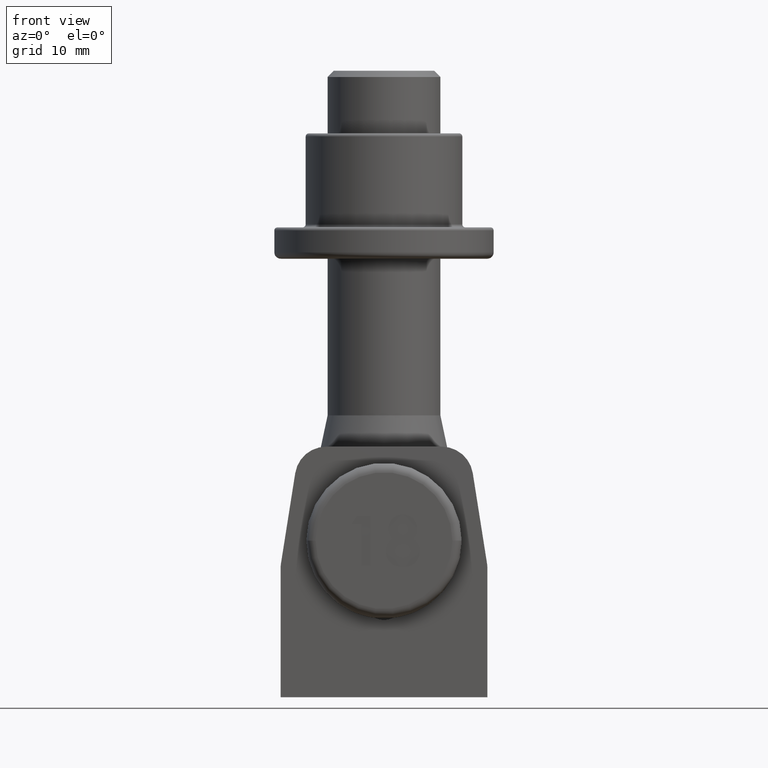
[diagram: clean part render]
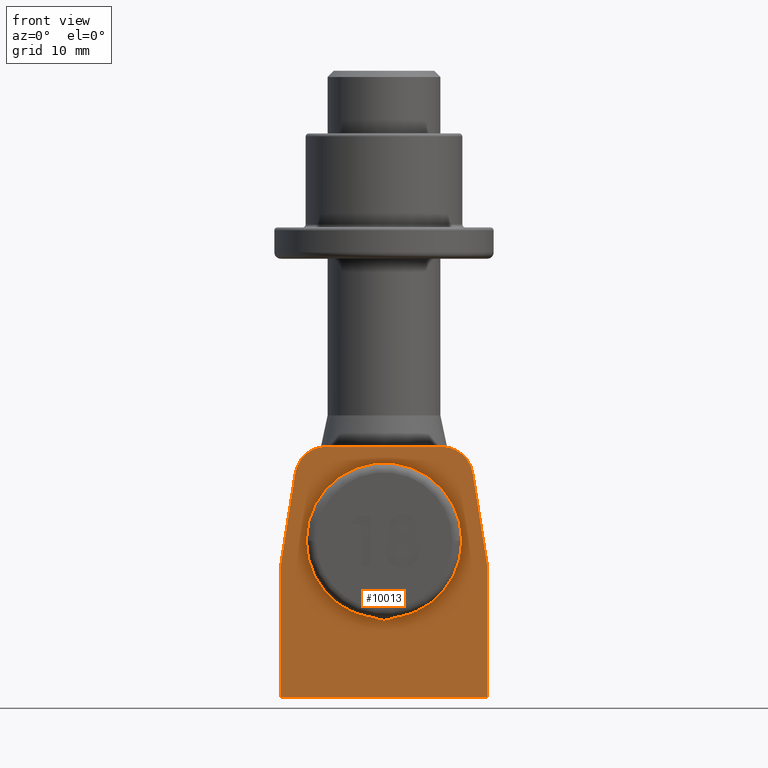
[diagram: same view with one face highlighted and labeled with its STEP entity id]
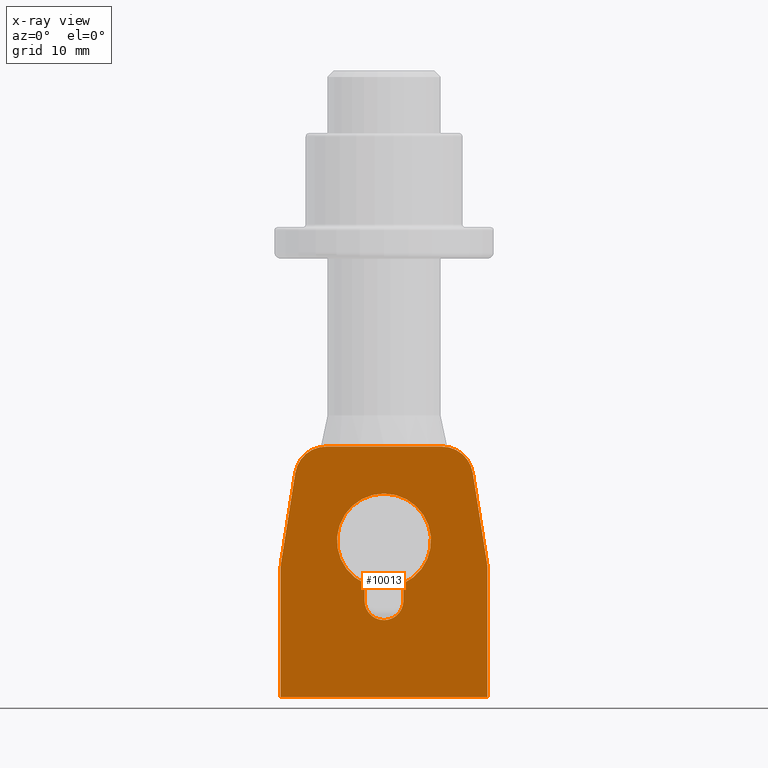
[diagram: x-ray of the same camera — body ghosted, the highlighted face saturated]
A machine part, front view. The second image highlights one B-rep face of the part: STEP entity #10013.
The next image is the same camera in x-ray: the body ghosted, the highlighted face saturated — about 0% of this face is hidden behind the body in this view.
In plain terms, the highlighted planar face has unit normal (0, -1, 0).
Its self-contained STEP definition (entity closure, byte-faithful):
#153 = VERTEX_POINT ( 'NONE', #10679 ) ;
#173 = LINE ( 'NONE', #5923, #13884 ) ;
#326 = LINE ( 'NONE', #1193, #13085 ) ;
#355 = DIRECTION ( 'NONE',  ( 0.0000000000000000000, 1.000000000000000000, -0.0000000000000000000 ) ) ;
#553 = ORIENTED_EDGE ( 'NONE', *, *, #9088, .T. ) ;
#625 = EDGE_CURVE ( 'NONE', #153, #3084, #10548, .T. ) ;
#823 = EDGE_CURVE ( 'NONE', #15438, #14872, #9381, .T. ) ;
#850 = CARTESIAN_POINT ( 'NONE',  ( 16.50000000000000000, -3.000000000000002700, 0.6076932305477469300 ) ) ;
#1151 = CARTESIAN_POINT ( 'NONE',  ( -3.100000000000001000, -3.000000000000002700, -1.829348431585548400 ) ) ;
#1193 = CARTESIAN_POINT ( 'NONE',  ( -16.50000000000000000, -3.000000000000002700, 0.9999999999999940000 ) ) ;
#1486 = VERTEX_POINT ( 'NONE', #8550 ) ;
#1487 = CARTESIAN_POINT ( 'NONE',  ( 3.100000000000000500, -3.000000000000002700, -4.600000000000000500 ) ) ;
#1599 = FACE_OUTER_BOUND ( 'NONE', #3349, .T. ) ;
#1601 = DIRECTION ( 'NONE',  ( 0.0000000000000000000, -1.000000000000000000, 0.0000000000000000000 ) ) ;
#1731 = ORIENTED_EDGE ( 'NONE', *, *, #9015, .F. ) ;
#1746 = VERTEX_POINT ( 'NONE', #7473 ) ;
#1831 = DIRECTION ( 'NONE',  ( 0.0000000000000000000, 0.0000000000000000000, -1.000000000000000000 ) ) ;
#1943 = DIRECTION ( 'NONE',  ( -0.0000000000000000000, -0.0000000000000000000, -1.000000000000000000 ) ) ;
#2301 = EDGE_CURVE ( 'NONE', #1486, #7757, #6612, .T. ) ;
#2311 = VECTOR ( 'NONE', #10129, 1000.000000000000000 ) ;
#2330 = LINE ( 'NONE', #1151, #6410 ) ;
#2361 = CARTESIAN_POINT ( 'NONE',  ( -9.227530510086486600, -3.000000000000002700, 15.00000000000000400 ) ) ;
#2665 = CARTESIAN_POINT ( 'NONE',  ( 13.50000000000000000, -3.000000000000002700, 20.00000000000000400 ) ) ;
#2692 = DIRECTION ( 'NONE',  ( -1.565266718984741400E-016, -0.0000000000000000000, -1.000000000000000000 ) ) ;
#2693 = ORIENTED_EDGE ( 'NONE', *, *, #12407, .F. ) ;
#2695 = CARTESIAN_POINT ( 'NONE',  ( -11.50000000000000000, -3.000000000000002700, 0.6076932305477539300 ) ) ;
#3022 = ORIENTED_EDGE ( 'NONE', *, *, #13350, .T. ) ;
#3026 = VERTEX_POINT ( 'NONE', #7383 ) ;
#3079 = VERTEX_POINT ( 'NONE', #10000 ) ;
#3084 = VERTEX_POINT ( 'NONE', #6350 ) ;
#3145 = CARTESIAN_POINT ( 'NONE',  ( 16.50000000000000000, -3.000000000000002700, -20.00000000000000700 ) ) ;
#3331 = VECTOR ( 'NONE', #1943, 1000.000000000000000 ) ;
#3348 = EDGE_CURVE ( 'NONE', #14530, #1486, #2330, .T. ) ;
#3349 = EDGE_LOOP ( 'NONE', ( #1731, #14623, #14463, #10225, #12847, #9268, #2693, #553, #10272, #5249 ) ) ;
#3360 = DIRECTION ( 'NONE',  ( 0.0000000000000000000, -1.000000000000000000, 0.0000000000000000000 ) ) ;
#3598 = VERTEX_POINT ( 'NONE', #8195 ) ;
#4392 = CARTESIAN_POINT ( 'NONE',  ( 0.0000000000000000000, -3.000000000000002700, 0.0000000000000000000 ) ) ;
#4459 = EDGE_LOOP ( 'NONE', ( #10085, #9923, #3022, #4747, #13427 ) ) ;
#4747 = ORIENTED_EDGE ( 'NONE', *, *, #11001, .T. ) ;
#4855 = AXIS2_PLACEMENT_3D ( 'NONE', #2361, #9779, #11074 ) ;
#5134 = CIRCLE ( 'NONE', #4855, 5.000000000000000900 ) ;
#5249 = ORIENTED_EDGE ( 'NONE', *, *, #9507, .T. ) ;
#5268 = LINE ( 'NONE', #3145, #3331 ) ;
#5352 = CARTESIAN_POINT ( 'NONE',  ( 14.16634533673183300, -3.000000000000002700, 15.77981286736506300 ) ) ;
#5680 = PLANE ( 'NONE',  #8237 ) ;
#5722 = VERTEX_POINT ( 'NONE', #11881 ) ;
#5923 = CARTESIAN_POINT ( 'NONE',  ( 16.50000000000000000, -3.000000000000002700, 0.9999999999999940000 ) ) ;
#6032 = CARTESIAN_POINT ( 'NONE',  ( -3.100000000000000500, -3.000000000000002700, -4.599999999999999600 ) ) ;
#6257 = EDGE_CURVE ( 'NONE', #3084, #3598, #326, .T. ) ;
#6350 = CARTESIAN_POINT ( 'NONE',  ( -16.50000000000000000, -3.000000000000002700, -20.00000000000000700 ) ) ;
#6363 = VECTOR ( 'NONE', #2692, 1000.000000000000000 ) ;
#6410 = VECTOR ( 'NONE', #14651, 1000.000000000000000 ) ;
#6612 = CIRCLE ( 'NONE', #10681, 7.499999999999998200 ) ;
#6888 = AXIS2_PLACEMENT_3D ( 'NONE', #7703, #355, #11598 ) ;
#6999 = AXIS2_PLACEMENT_3D ( 'NONE', #2695, #1601, #8962 ) ;
#7383 = CARTESIAN_POINT ( 'NONE',  ( -16.43881482664534500, -3.000000000000002700, 1.387506097912803100 ) ) ;
#7473 = CARTESIAN_POINT ( 'NONE',  ( -14.16634533673183300, -3.000000000000002700, 15.77981286736506000 ) ) ;
#7505 = AXIS2_PLACEMENT_3D ( 'NONE', #7969, #8196, #14163 ) ;
#7538 = EDGE_CURVE ( 'NONE', #3026, #3598, #13454, .T. ) ;
#7551 = AXIS2_PLACEMENT_3D ( 'NONE', #14389, #8264, #13057 ) ;
#7703 = CARTESIAN_POINT ( 'NONE',  ( 0.0000000000000000000, -3.000000000000002700, -4.600000000000000500 ) ) ;
#7757 = VERTEX_POINT ( 'NONE', #8573 ) ;
#7887 = EDGE_CURVE ( 'NONE', #15648, #14530, #9195, .T. ) ;
#7903 = VERTEX_POINT ( 'NONE', #5352 ) ;
#7969 = CARTESIAN_POINT ( 'NONE',  ( 9.227530510086488400, -3.000000000000002700, 15.00000000000000400 ) ) ;
#8094 = DIRECTION ( 'NONE',  ( 0.0000000000000000000, -0.0000000000000000000, -1.000000000000000000 ) ) ;
#8119 = LINE ( 'NONE', #2665, #2311 ) ;
#8195 = CARTESIAN_POINT ( 'NONE',  ( -16.50000000000000000, -3.000000000000002700, 0.6076932305477540400 ) ) ;
#8196 = DIRECTION ( 'NONE',  ( 0.0000000000000000000, -1.000000000000000000, 0.0000000000000000000 ) ) ;
#8237 = AXIS2_PLACEMENT_3D ( 'NONE', #4392, #3360, #8094 ) ;
#8264 = DIRECTION ( 'NONE',  ( 0.0000000000000000000, -1.000000000000000000, 0.0000000000000000000 ) ) ;
#8550 = CARTESIAN_POINT ( 'NONE',  ( -3.100000000000001000, -3.000000000000002700, -1.829348431585548400 ) ) ;
#8573 = CARTESIAN_POINT ( 'NONE',  ( 3.100000000000001000, -3.000000000000002700, -1.829348431585548400 ) ) ;
#8962 = DIRECTION ( 'NONE',  ( 0.0000000000000000000, 0.0000000000000000000, -1.000000000000000000 ) ) ;
#9015 = EDGE_CURVE ( 'NONE', #3026, #1746, #12437, .T. ) ;
#9088 = EDGE_CURVE ( 'NONE', #7903, #5722, #9177, .T. ) ;
#9177 = CIRCLE ( 'NONE', #7505, 5.000000000000000900 ) ;
#9195 = CIRCLE ( 'NONE', #6888, 3.100000000000000500 ) ;
#9268 = ORIENTED_EDGE ( 'NONE', *, *, #823, .T. ) ;
#9316 = DIRECTION ( 'NONE',  ( 0.0000000000000000000, 1.000000000000000000, 0.0000000000000000000 ) ) ;
#9381 = CIRCLE ( 'NONE', #7551, 5.000000000000000000 ) ;
#9507 = EDGE_CURVE ( 'NONE', #15547, #1746, #5134, .T. ) ;
#9745 = DIRECTION ( 'NONE',  ( 0.1559625734730108500, -0.0000000000000000000, -0.9877629653290690400 ) ) ;
#9776 = CARTESIAN_POINT ( 'NONE',  ( -13.50000000000000000, -3.000000000000002700, 20.00000000000000400 ) ) ;
#9779 = DIRECTION ( 'NONE',  ( 0.0000000000000000000, -1.000000000000000000, 0.0000000000000000000 ) ) ;
#9923 = ORIENTED_EDGE ( 'NONE', *, *, #2301, .T. ) ;
#10000 = CARTESIAN_POINT ( 'NONE',  ( 3.100000000000000500, -3.000000000000002700, -4.600000000000000500 ) ) ;
#10013 = ADVANCED_FACE ( 'NONE', ( #1599, #10310 ), #5680, .T. ) ;
#10085 = ORIENTED_EDGE ( 'NONE', *, *, #3348, .T. ) ;
#10129 = DIRECTION ( 'NONE',  ( 1.000000000000000000, -0.0000000000000000000, -0.0000000000000000000 ) ) ;
#10225 = ORIENTED_EDGE ( 'NONE', *, *, #625, .F. ) ;
#10272 = ORIENTED_EDGE ( 'NONE', *, *, #11910, .F. ) ;
#10310 = FACE_BOUND ( 'NONE', #4459, .T. ) ;
#10548 = LINE ( 'NONE', #12891, #15362 ) ;
#10679 = CARTESIAN_POINT ( 'NONE',  ( 16.50000000000000000, -3.000000000000002700, -20.00000000000000700 ) ) ;
#10681 = AXIS2_PLACEMENT_3D ( 'NONE', #15506, #9316, #11897 ) ;
#11001 = EDGE_CURVE ( 'NONE', #3079, #15648, #14125, .T. ) ;
#11014 = DIRECTION ( 'NONE',  ( 0.1559625734730108500, -0.0000000000000000000, 0.9877629653290690400 ) ) ;
#11029 = CARTESIAN_POINT ( 'NONE',  ( -9.227530510086486600, -3.000000000000002700, 20.00000000000000400 ) ) ;
#11074 = DIRECTION ( 'NONE',  ( 0.0000000000000000000, 0.0000000000000000000, -1.000000000000000000 ) ) ;
#11253 = EDGE_CURVE ( 'NONE', #15438, #153, #5268, .T. ) ;
#11503 = CARTESIAN_POINT ( 'NONE',  ( 16.43881482664534500, -3.000000000000002700, 1.387506097912808400 ) ) ;
#11598 = DIRECTION ( 'NONE',  ( 0.0000000000000000000, 0.0000000000000000000, -1.000000000000000000 ) ) ;
#11881 = CARTESIAN_POINT ( 'NONE',  ( 9.227530510086488400, -3.000000000000002700, 20.00000000000000400 ) ) ;
#11897 = DIRECTION ( 'NONE',  ( 0.0000000000000000000, 0.0000000000000000000, 1.000000000000000000 ) ) ;
#11910 = EDGE_CURVE ( 'NONE', #15547, #5722, #8119, .T. ) ;
#11969 = AXIS2_PLACEMENT_3D ( 'NONE', #13139, #13084, #1831 ) ;
#12407 = EDGE_CURVE ( 'NONE', #7903, #14872, #173, .T. ) ;
#12437 = LINE ( 'NONE', #9776, #15138 ) ;
#12847 = ORIENTED_EDGE ( 'NONE', *, *, #11253, .F. ) ;
#12891 = CARTESIAN_POINT ( 'NONE',  ( -16.50000000000000000, -3.000000000000002700, -20.00000000000000700 ) ) ;
#13057 = DIRECTION ( 'NONE',  ( 0.0000000000000000000, 0.0000000000000000000, -1.000000000000000000 ) ) ;
#13084 = DIRECTION ( 'NONE',  ( 0.0000000000000000000, 1.000000000000000000, -0.0000000000000000000 ) ) ;
#13085 = VECTOR ( 'NONE', #15797, 1000.000000000000000 ) ;
#13139 = CARTESIAN_POINT ( 'NONE',  ( 0.0000000000000000000, -3.000000000000002700, -4.600000000000000500 ) ) ;
#13350 = EDGE_CURVE ( 'NONE', #7757, #3079, #15612, .T. ) ;
#13427 = ORIENTED_EDGE ( 'NONE', *, *, #7887, .T. ) ;
#13454 = CIRCLE ( 'NONE', #6999, 5.000000000000000000 ) ;
#13884 = VECTOR ( 'NONE', #9745, 1000.000000000000100 ) ;
#14125 = CIRCLE ( 'NONE', #11969, 3.100000000000000500 ) ;
#14163 = DIRECTION ( 'NONE',  ( 0.0000000000000000000, 0.0000000000000000000, -1.000000000000000000 ) ) ;
#14389 = CARTESIAN_POINT ( 'NONE',  ( 11.50000000000000000, -3.000000000000002700, 0.6076932305477539300 ) ) ;
#14463 = ORIENTED_EDGE ( 'NONE', *, *, #6257, .F. ) ;
#14530 = VERTEX_POINT ( 'NONE', #6032 ) ;
#14623 = ORIENTED_EDGE ( 'NONE', *, *, #7538, .T. ) ;
#14651 = DIRECTION ( 'NONE',  ( -1.565266718984741400E-016, -0.0000000000000000000, 1.000000000000000000 ) ) ;
#14872 = VERTEX_POINT ( 'NONE', #11503 ) ;
#15138 = VECTOR ( 'NONE', #11014, 1000.000000000000100 ) ;
#15314 = DIRECTION ( 'NONE',  ( -1.000000000000000000, -0.0000000000000000000, -0.0000000000000000000 ) ) ;
#15362 = VECTOR ( 'NONE', #15314, 1000.000000000000000 ) ;
#15438 = VERTEX_POINT ( 'NONE', #850 ) ;
#15506 = CARTESIAN_POINT ( 'NONE',  ( -1.925929944387235900E-031, -3.000000000000002700, 4.999999999999999100 ) ) ;
#15547 = VERTEX_POINT ( 'NONE', #11029 ) ;
#15612 = LINE ( 'NONE', #1487, #6363 ) ;
#15648 = VERTEX_POINT ( 'NONE', #15885 ) ;
#15797 = DIRECTION ( 'NONE',  ( -0.0000000000000000000, -0.0000000000000000000, 1.000000000000000000 ) ) ;
#15885 = CARTESIAN_POINT ( 'NONE',  ( 0.0000000000000000000, -3.000000000000002700, -7.700000000000001100 ) ) ;